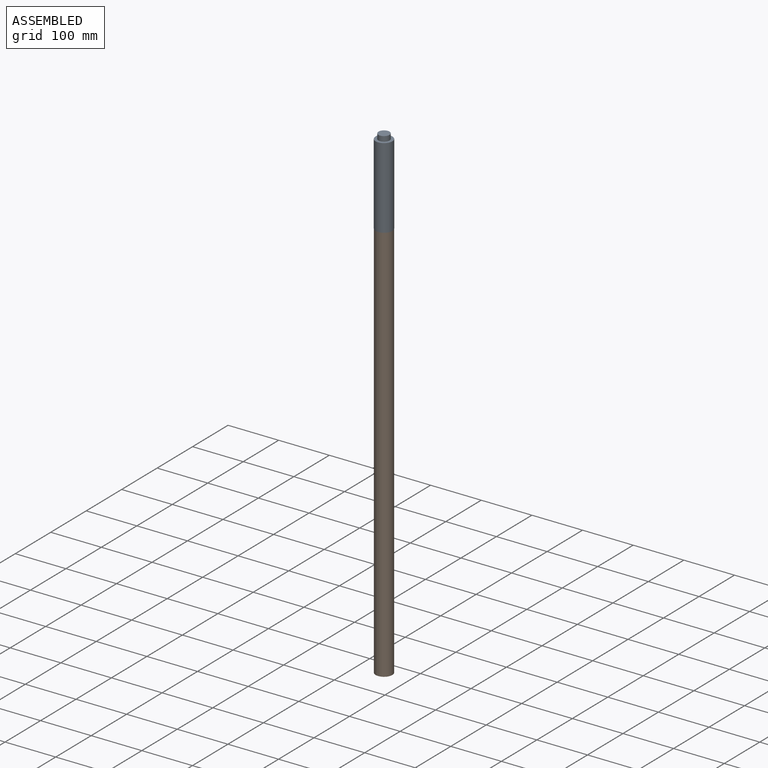
[diagram: assembled view]
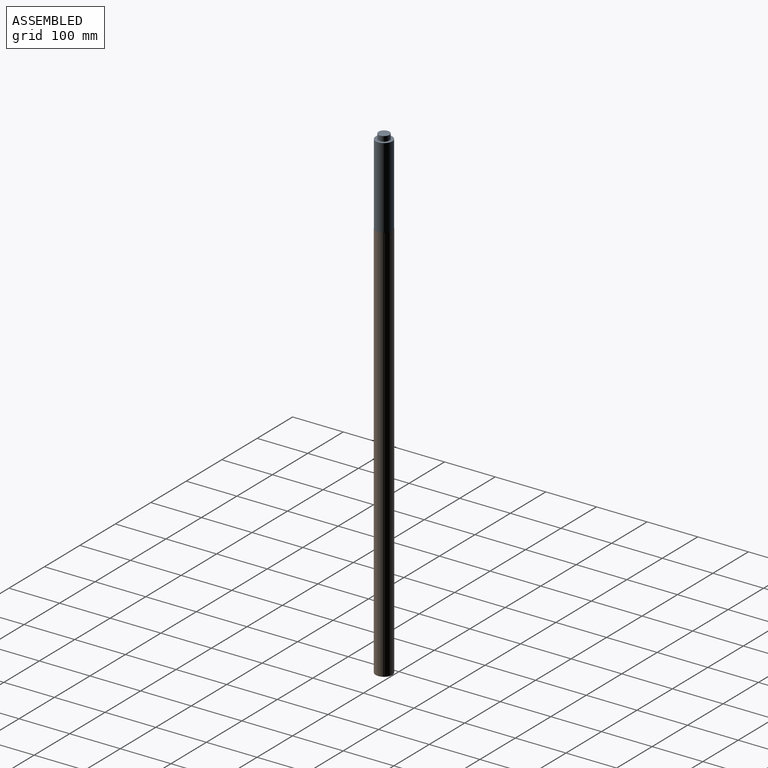
[diagram: assembled view, second angle]
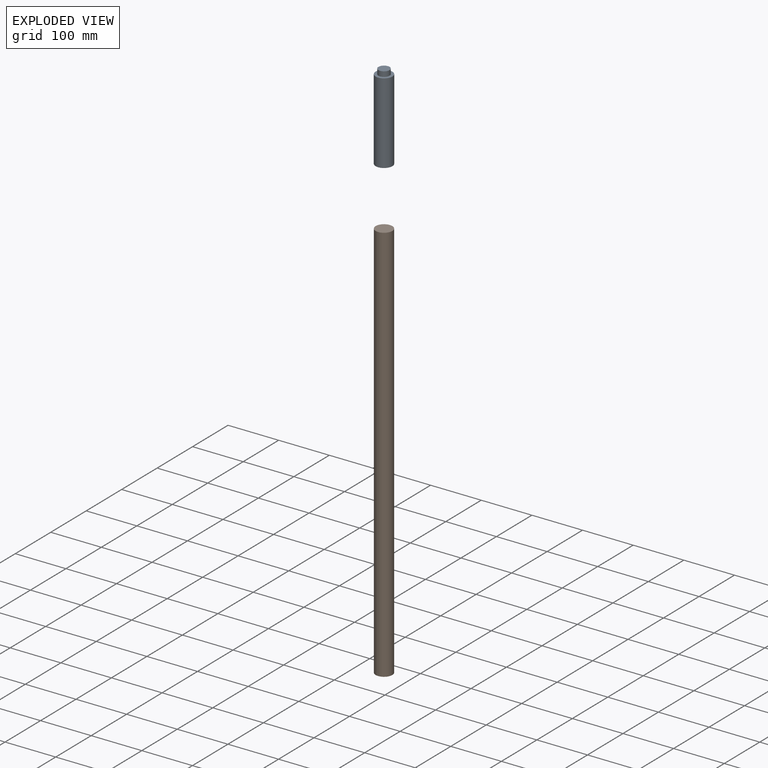
[diagram: exploded view]
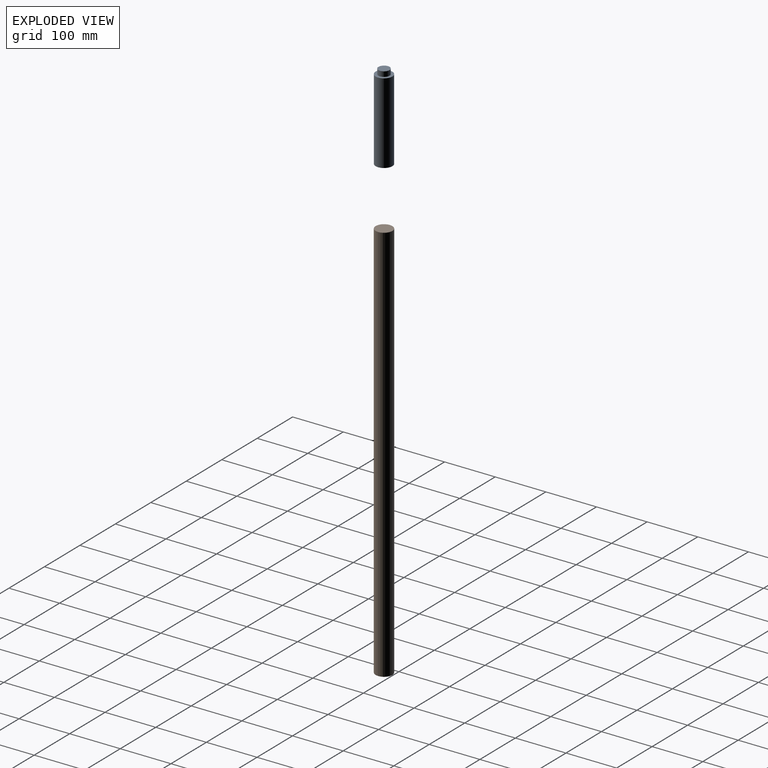
[diagram: exploded view, second angle]
ASSEMBLY  parts=2 mates=2
PART A: 5 faces, bbox 33x33x170 mm
  f0: cylinder r=16.5mm len=160mm, axis (0,0,-1), area 16587.6mm2, adj f1,f2
  f1: plane 33x33mm, normal (0,0,1), area 475.2mm2, adj f0,f3
  f2: plane 33x33mm, normal (0,0,-1), area 855.3mm2, adj f0
  f3: cylinder r=11mm len=22mm, axis (0,0,-1), area 691.2mm2, adj f1,f4
  f4: plane 22x22mm, normal (0,0,1), area 380.1mm2, adj f3
PART B: 3 faces, bbox 33x33x792.5 mm
  f0: cylinder r=16.5mm len=792.48mm, axis (0,0,-1), area 82158.4mm2, adj f1,f2
  f1: plane 33x33mm, normal (0,0,1), area 855.3mm2, adj f0
  f2: plane 33x33mm, normal (0,0,-1), area 855.3mm2, adj f0
PLACE A t=(-273.35,-140.63,422.02)mm
PLACE B t=(-273.35,-140.63,-370.46)mm
MATE cylindrical A.f0 <-> B.f0  axis (0,0,-1) through (-273.35,-140.63,502.02)mm
MATE planar A.f0 <-> B.f0  axis (0,0,-1) through (-273.35,-140.63,422.02)mm
